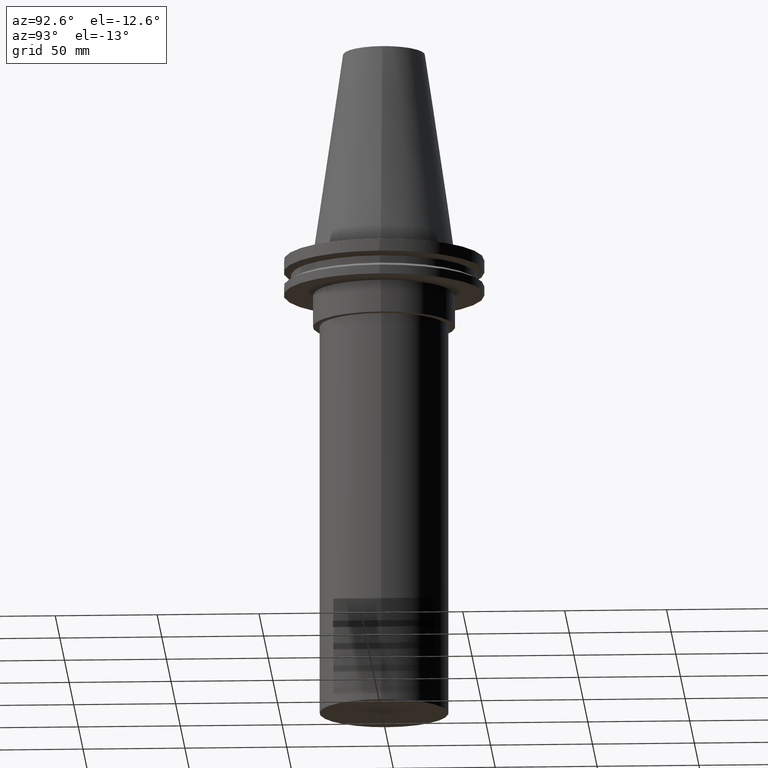
[diagram: clean part render]
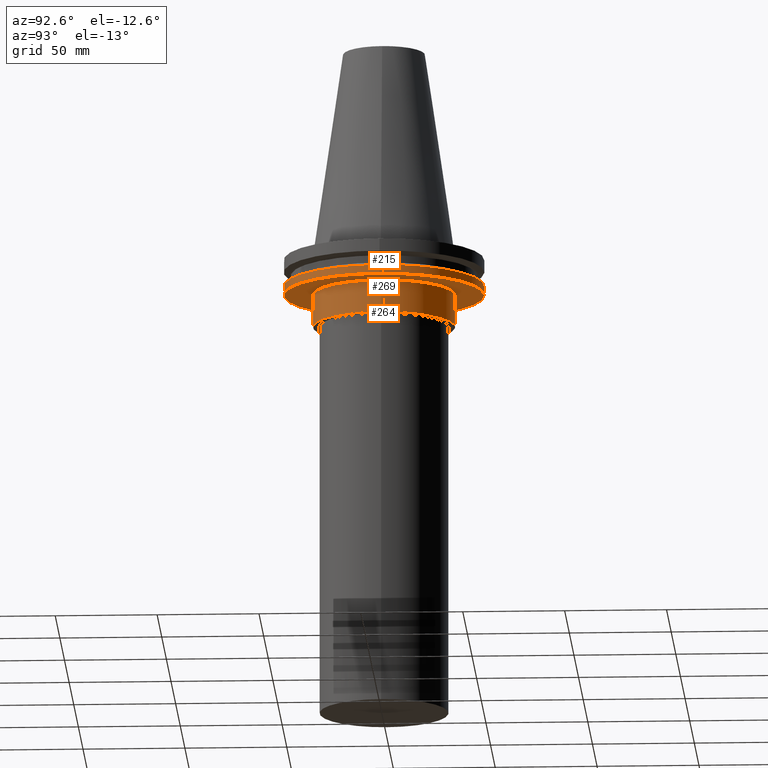
[diagram: same view with one multi-face feature highlighted, each face labeled with its STEP entity id]
A machine part, auxiliary view. The highlighted faces form ONE feature: a stepped (counterbored) hole: 2 coaxial cylindrical walls of radii 34.925 -> 49.215 mm joined by 1 annular planar shoulder face(s). The faces share edges in the B-rep.
Their STEP definitions:
[1] entity #215 (Cylinder):
#5 = VERTEX_POINT ( 'NONE', #182 ) ;
#20 = DIRECTION ( 'NONE',  ( -0.000000000000000000, -0.000000000000000000, 1.000000000000000000 ) ) ;
#29 = CARTESIAN_POINT ( 'NONE',  ( 0.000000000000000000, 0.000000000000000000, -14.65761014474876944 ) ) ;
#39 = DIRECTION ( 'NONE',  ( -0.000000000000000000, -0.000000000000000000, 1.000000000000000000 ) ) ;
#49 = CARTESIAN_POINT ( 'NONE',  ( 0.000000000000000000, 0.000000000000000000, -19.04999999999999716 ) ) ;
#67 = DIRECTION ( 'NONE',  ( 1.000000000000000000, 0.000000000000000000, 0.000000000000000000 ) ) ;
#74 = ORIENTED_EDGE ( 'NONE', *, *, #355, .F. ) ;
#104 = EDGE_LOOP ( 'NONE', ( #108 ) ) ;
#107 = CARTESIAN_POINT ( 'NONE',  ( 0.000000000000000000, 0.000000000000000000, 101.5999999999999943 ) ) ;
#108 = ORIENTED_EDGE ( 'NONE', *, *, #324, .T. ) ;
#146 = CYLINDRICAL_SURFACE ( 'NONE', #393, 49.21499999999998920 ) ;
#161 = EDGE_LOOP ( 'NONE', ( #74 ) ) ;
#182 = CARTESIAN_POINT ( 'NONE',  ( 49.21499999999998920, 0.000000000000000000, -14.65761014474876944 ) ) ;
#183 = AXIS2_PLACEMENT_3D ( 'NONE', #49, #20, #67 ) ;
#200 = FACE_OUTER_BOUND ( 'NONE', #161, .T. ) ;
#214 = VERTEX_POINT ( 'NONE', #266 ) ;
#215 = ADVANCED_FACE ( 'NONE', ( #200, #313 ), #146, .T. ) ;
#266 = CARTESIAN_POINT ( 'NONE',  ( 49.21499999999998920, 0.000000000000000000, -19.04999999999999716 ) ) ;
#272 = DIRECTION ( 'NONE',  ( 1.000000000000000000, 0.000000000000000000, 0.000000000000000000 ) ) ;
#291 = DIRECTION ( 'NONE',  ( 1.000000000000000000, 0.000000000000000000, 0.000000000000000000 ) ) ;
#313 = FACE_OUTER_BOUND ( 'NONE', #104, .T. ) ;
#324 = EDGE_CURVE ( 'NONE', #214, #214, #358, .T. ) ;
#339 = AXIS2_PLACEMENT_3D ( 'NONE', #29, #395, #291 ) ;
#355 = EDGE_CURVE ( 'NONE', #5, #5, #394, .T. ) ;
#358 = CIRCLE ( 'NONE', #183, 49.21499999999998920 ) ;
#393 = AXIS2_PLACEMENT_3D ( 'NONE', #107, #39, #272 ) ;
#394 = CIRCLE ( 'NONE', #339, 49.21499999999998920 ) ;
#395 = DIRECTION ( 'NONE',  ( -0.000000000000000000, -0.000000000000000000, 1.000000000000000000 ) ) ;
[2] entity #264 (Cylinder):
#40 = CYLINDRICAL_SURFACE ( 'NONE', #156, 34.92499999999999716 ) ;
#47 = DIRECTION ( 'NONE',  ( 1.000000000000000000, 0.000000000000000000, 0.000000000000000000 ) ) ;
#77 = DIRECTION ( 'NONE',  ( -0.000000000000000000, -0.000000000000000000, 1.000000000000000000 ) ) ;
#78 = DIRECTION ( 'NONE',  ( -0.000000000000000000, -0.000000000000000000, 1.000000000000000000 ) ) ;
#81 = ORIENTED_EDGE ( 'NONE', *, *, #274, .F. ) ;
#85 = EDGE_CURVE ( 'NONE', #88, #88, #89, .T. ) ;
#88 = VERTEX_POINT ( 'NONE', #365 ) ;
#89 = CIRCLE ( 'NONE', #254, 34.92499999999999716 ) ;
#120 = CARTESIAN_POINT ( 'NONE',  ( 34.92499999999999716, 0.000000000000000000, -19.04999999999999716 ) ) ;
#121 = DIRECTION ( 'NONE',  ( 1.000000000000000000, 0.000000000000000000, 0.000000000000000000 ) ) ;
#137 = FACE_OUTER_BOUND ( 'NONE', #311, .T. ) ;
#156 = AXIS2_PLACEMENT_3D ( 'NONE', #381, #315, #307 ) ;
#179 = VERTEX_POINT ( 'NONE', #120 ) ;
#254 = AXIS2_PLACEMENT_3D ( 'NONE', #356, #78, #121 ) ;
#264 = ADVANCED_FACE ( 'NONE', ( #137, #306 ), #40, .T. ) ;
#271 = EDGE_LOOP ( 'NONE', ( #278 ) ) ;
#274 = EDGE_CURVE ( 'NONE', #179, #179, #318, .T. ) ;
#278 = ORIENTED_EDGE ( 'NONE', *, *, #85, .T. ) ;
#306 = FACE_OUTER_BOUND ( 'NONE', #271, .T. ) ;
#307 = DIRECTION ( 'NONE',  ( 1.000000000000000000, 0.000000000000000000, 0.000000000000000000 ) ) ;
#311 = EDGE_LOOP ( 'NONE', ( #81 ) ) ;
#315 = DIRECTION ( 'NONE',  ( -0.000000000000000000, -0.000000000000000000, 1.000000000000000000 ) ) ;
#318 = CIRCLE ( 'NONE', #379, 34.92499999999999716 ) ;
#354 = CARTESIAN_POINT ( 'NONE',  ( 0.000000000000000000, 0.000000000000000000, -19.04999999999999716 ) ) ;
#356 = CARTESIAN_POINT ( 'NONE',  ( 0.000000000000000000, 0.000000000000000000, -35.00000000000000000 ) ) ;
#365 = CARTESIAN_POINT ( 'NONE',  ( 34.92499999999999716, 0.000000000000000000, -35.00000000000000000 ) ) ;
#379 = AXIS2_PLACEMENT_3D ( 'NONE', #354, #77, #47 ) ;
#381 = CARTESIAN_POINT ( 'NONE',  ( 0.000000000000000000, 0.000000000000000000, 101.5999999999999943 ) ) ;
[3] entity #269 (Plane):
#13 = CARTESIAN_POINT ( 'NONE',  ( 0.000000000000000000, 49.21499999999998920, -19.04999999999999716 ) ) ;
#20 = DIRECTION ( 'NONE',  ( -0.000000000000000000, -0.000000000000000000, 1.000000000000000000 ) ) ;
#41 = PLANE ( 'NONE',  #166 ) ;
#47 = DIRECTION ( 'NONE',  ( 1.000000000000000000, 0.000000000000000000, 0.000000000000000000 ) ) ;
#49 = CARTESIAN_POINT ( 'NONE',  ( 0.000000000000000000, 0.000000000000000000, -19.04999999999999716 ) ) ;
#67 = DIRECTION ( 'NONE',  ( 1.000000000000000000, 0.000000000000000000, 0.000000000000000000 ) ) ;
#77 = DIRECTION ( 'NONE',  ( -0.000000000000000000, -0.000000000000000000, 1.000000000000000000 ) ) ;
#109 = DIRECTION ( 'NONE',  ( 0.000000000000000000, -0.000000000000000000, 1.000000000000000000 ) ) ;
#112 = DIRECTION ( 'NONE',  ( 1.000000000000000000, 0.000000000000000000, 0.000000000000000000 ) ) ;
#120 = CARTESIAN_POINT ( 'NONE',  ( 34.92499999999999716, 0.000000000000000000, -19.04999999999999716 ) ) ;
#166 = AXIS2_PLACEMENT_3D ( 'NONE', #13, #109, #112 ) ;
#168 = FACE_BOUND ( 'NONE', #312, .T. ) ;
#179 = VERTEX_POINT ( 'NONE', #120 ) ;
#183 = AXIS2_PLACEMENT_3D ( 'NONE', #49, #20, #67 ) ;
#196 = FACE_OUTER_BOUND ( 'NONE', #288, .T. ) ;
#214 = VERTEX_POINT ( 'NONE', #266 ) ;
#219 = ORIENTED_EDGE ( 'NONE', *, *, #274, .T. ) ;
#226 = ORIENTED_EDGE ( 'NONE', *, *, #324, .F. ) ;
#266 = CARTESIAN_POINT ( 'NONE',  ( 49.21499999999998920, 0.000000000000000000, -19.04999999999999716 ) ) ;
#269 = ADVANCED_FACE ( 'NONE', ( #196, #168 ), #41, .F. ) ;
#274 = EDGE_CURVE ( 'NONE', #179, #179, #318, .T. ) ;
#288 = EDGE_LOOP ( 'NONE', ( #226 ) ) ;
#312 = EDGE_LOOP ( 'NONE', ( #219 ) ) ;
#318 = CIRCLE ( 'NONE', #379, 34.92499999999999716 ) ;
#324 = EDGE_CURVE ( 'NONE', #214, #214, #358, .T. ) ;
#354 = CARTESIAN_POINT ( 'NONE',  ( 0.000000000000000000, 0.000000000000000000, -19.04999999999999716 ) ) ;
#358 = CIRCLE ( 'NONE', #183, 49.21499999999998920 ) ;
#379 = AXIS2_PLACEMENT_3D ( 'NONE', #354, #77, #47 ) ;